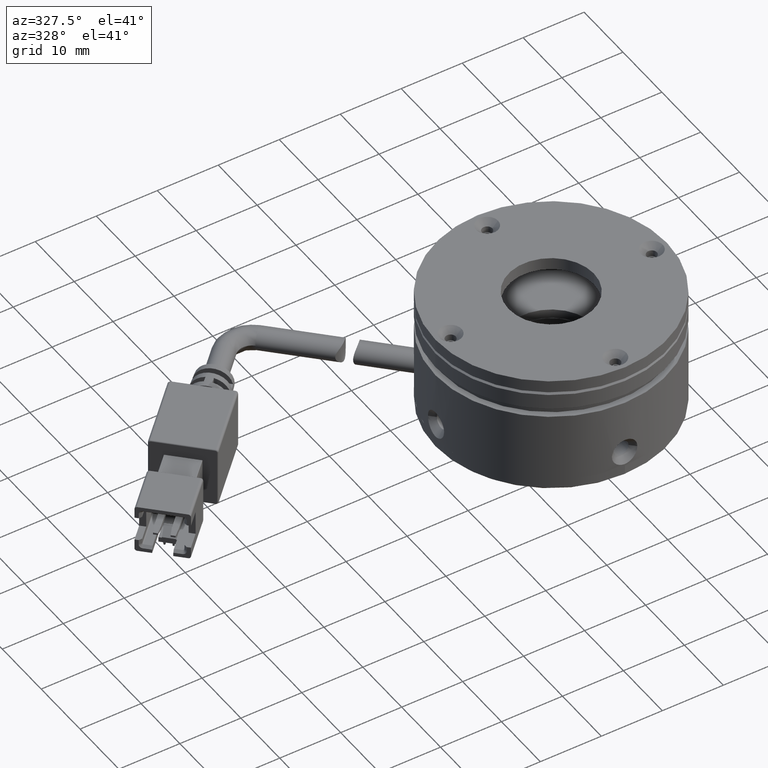
[diagram: clean part render]
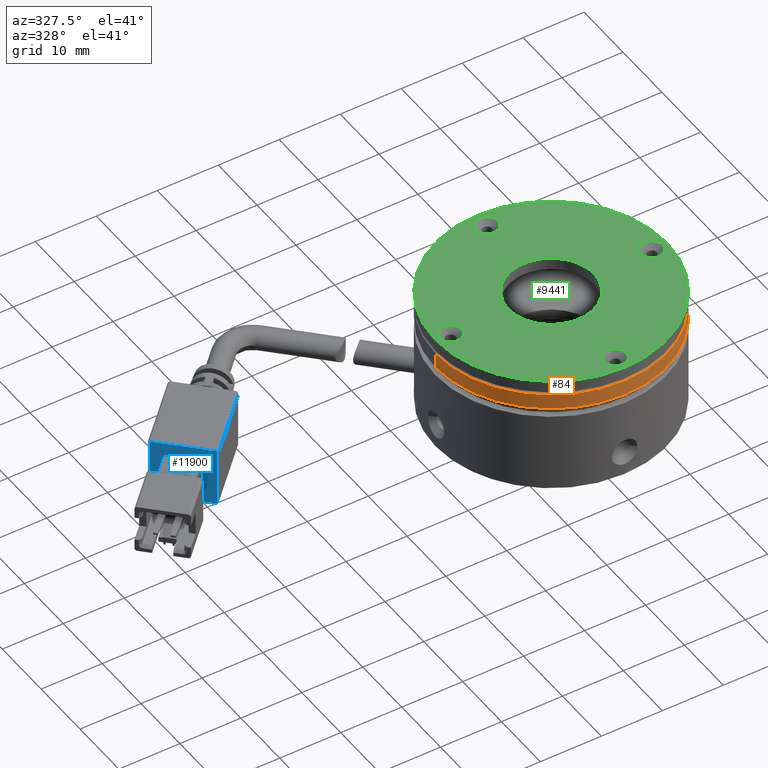
[diagram: same view with three faces highlighted in distinct colors, each labeled with its STEP entity id]
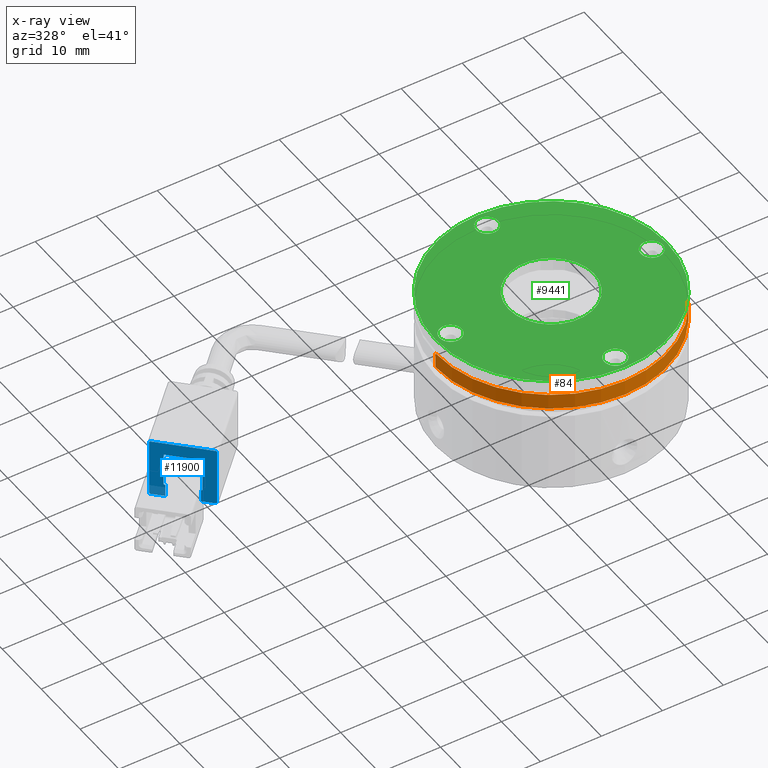
[diagram: x-ray of the same camera — body ghosted, the three highlighted faces saturated]
A machine part, auxiliary view with three faces highlighted in distinct colors.
The next image is the same camera in x-ray (body ghosted, the three faces saturated) — at least one of them is partly hidden behind the body in this view.
Their STEP definitions:

[orange] entity #84 — the highlighted cylindrical surface (partial cylindrical patch) has radius 19 mm, axis along (-0, 0, 1).
#84 = ADVANCED_FACE ( 'NONE', ( #20354 ), #17939, .T. ) ;
#930 = CARTESIAN_POINT ( 'NONE',  ( 19.00000000000007100, -1.446071792922953300E-014, 8.664916346340206100 ) ) ;
#1526 = CARTESIAN_POINT ( 'NONE',  ( 7.285838599102589800E-014, -1.346851322169655200E-014, 10.74574377933754700 ) ) ;
#1963 = EDGE_CURVE ( 'NONE', #17048, #11393, #11878, .T. ) ;
#3597 = AXIS2_PLACEMENT_3D ( 'NONE', #16486, #5033, #18387 ) ;
#4085 = CARTESIAN_POINT ( 'NONE',  ( -18.99999999999992500, -1.513644753012598100E-014, 6.164916346340190100 ) ) ;
#5033 = DIRECTION ( 'NONE',  ( 5.418055927066809900E-016, -4.212899870228777700E-017, -1.000000000000000000 ) ) ;
#5494 = VECTOR ( 'NONE', #7684, 1000.000000000000000 ) ;
#5673 = DIRECTION ( 'NONE',  ( -5.418055927066809900E-016, 4.212899870228777700E-017, 1.000000000000000000 ) ) ;
#5728 = EDGE_CURVE ( 'NONE', #11393, #18857, #20862, .T. ) ;
#5805 = VERTEX_POINT ( 'NONE', #4085 ) ;
#6276 = DIRECTION ( 'NONE',  ( -1.000000000000000000, -7.762887554996211700E-017, -5.478074134663601200E-016 ) ) ;
#6447 = EDGE_CURVE ( 'NONE', #17048, #5805, #17300, .T. ) ;
#6853 = EDGE_CURVE ( 'NONE', #18857, #21797, #11293, .T. ) ;
#7350 = AXIS2_PLACEMENT_3D ( 'NONE', #1526, #5673, #6276 ) ;
#7684 = DIRECTION ( 'NONE',  ( -5.418055927066809900E-016, 4.212899870228777700E-017, 1.000000000000000000 ) ) ;
#7690 = CARTESIAN_POINT ( 'NONE',  ( 7.285838599102589800E-014, -1.355617639792098400E-014, 8.664916346340195500 ) ) ;
#7952 = ORIENTED_EDGE ( 'NONE', *, *, #15682, .F. ) ;
#8469 = DIRECTION ( 'NONE',  ( -5.418055927066809900E-016, 4.212899870228777700E-017, 1.000000000000000000 ) ) ;
#9600 = CARTESIAN_POINT ( 'NONE',  ( -18.99999999999992500, -1.494346185714583400E-014, 10.74574377933753600 ) ) ;
#9603 = DIRECTION ( 'NONE',  ( -1.000000000000000000, -7.762887554996211700E-017, -5.478074134663601200E-016 ) ) ;
#10078 = CARTESIAN_POINT ( 'NONE',  ( 7.285838599102589800E-014, -1.366149889467670200E-014, 6.164916346340200800 ) ) ;
#10600 = ORIENTED_EDGE ( 'NONE', *, *, #5728, .T. ) ;
#11293 = CIRCLE ( 'NONE', #3597, 19.00000000000000000 ) ;
#11393 = VERTEX_POINT ( 'NONE', #930 ) ;
#11878 = LINE ( 'NONE', #24292, #16991 ) ;
#11984 = DIRECTION ( 'NONE',  ( -1.000000000000000000, -7.762887554996203100E-017, -5.478074134663601200E-016 ) ) ;
#12218 = CARTESIAN_POINT ( 'NONE',  ( 7.666016354485514600E-014, -19.00000000000001400, 8.664916346340195500 ) ) ;
#12568 = CARTESIAN_POINT ( 'NONE',  ( -18.99999999999992500, -1.508378628174812200E-014, 8.664916346340184800 ) ) ;
#13642 = ORIENTED_EDGE ( 'NONE', *, *, #1963, .T. ) ;
#15271 = AXIS2_PLACEMENT_3D ( 'NONE', #10078, #23426, #11984 ) ;
#15439 = EDGE_LOOP ( 'NONE', ( #19738, #13642, #10600, #19701, #7952 ) ) ;
#15661 = LINE ( 'NONE', #9600, #5494 ) ;
#15682 = EDGE_CURVE ( 'NONE', #5805, #21797, #15661, .T. ) ;
#16486 = CARTESIAN_POINT ( 'NONE',  ( 7.285838599102589800E-014, -1.355617639792098400E-014, 8.664916346340195500 ) ) ;
#16686 = AXIS2_PLACEMENT_3D ( 'NONE', #7690, #21067, #9603 ) ;
#16991 = VECTOR ( 'NONE', #8469, 1000.000000000000000 ) ;
#17048 = VERTEX_POINT ( 'NONE', #19003 ) ;
#17300 = CIRCLE ( 'NONE', #15271, 19.00000000000000000 ) ;
#17939 = CYLINDRICAL_SURFACE ( 'NONE', #7350, 19.00000000000000000 ) ;
#18387 = DIRECTION ( 'NONE',  ( -1.000000000000000000, -9.658072952500873500E-016, -5.478074134663601200E-016 ) ) ;
#18857 = VERTEX_POINT ( 'NONE', #12218 ) ;
#19003 = CARTESIAN_POINT ( 'NONE',  ( 19.00000000000007100, -1.446071792922953300E-014, 6.164916346340211500 ) ) ;
#19701 = ORIENTED_EDGE ( 'NONE', *, *, #6853, .T. ) ;
#19738 = ORIENTED_EDGE ( 'NONE', *, *, #6447, .F. ) ;
#20354 = FACE_OUTER_BOUND ( 'NONE', #15439, .T. ) ;
#20862 = CIRCLE ( 'NONE', #16686, 19.00000000000000000 ) ;
#21067 = DIRECTION ( 'NONE',  ( 5.418055927066809900E-016, -4.212899870228777700E-017, -1.000000000000000000 ) ) ;
#21797 = VERTEX_POINT ( 'NONE', #12568 ) ;
#23426 = DIRECTION ( 'NONE',  ( 5.418055927066809900E-016, -4.212899870228777700E-017, -1.000000000000000000 ) ) ;
#24292 = CARTESIAN_POINT ( 'NONE',  ( 19.00000000000007100, -1.432039350462724400E-014, 10.74574377933755700 ) ) ;

[blue] entity #11900 — the highlighted planar face has unit normal (-0.7071, -0.7071, -0).
#11 = VERTEX_POINT ( 'NONE', #11542 ) ;
#97 = ORIENTED_EDGE ( 'NONE', *, *, #16356, .F. ) ;
#148 = ORIENTED_EDGE ( 'NONE', *, *, #23994, .T. ) ;
#172 = EDGE_CURVE ( 'NONE', #24211, #16237, #23294, .T. ) ;
#343 = CARTESIAN_POINT ( 'NONE',  ( -51.61879502661791700, 9.192388155424808400, -10.13508365365980300 ) ) ;
#362 = LINE ( 'NONE', #13523, #4878 ) ;
#384 = LINE ( 'NONE', #10986, #24594 ) ;
#410 = EDGE_CURVE ( 'NONE', #19726, #6949, #17009, .T. ) ;
#507 = VERTEX_POINT ( 'NONE', #2900 ) ;
#733 = DIRECTION ( 'NONE',  ( 2.712282868059973800E-016, -3.327687214322150600E-017, -1.000000000000000000 ) ) ;
#784 = DIRECTION ( 'NONE',  ( 0.7071067811865522400, -0.7071067811865428000, 2.153176627992813000E-016 ) ) ;
#1229 = EDGE_CURVE ( 'NONE', #5781, #15295, #1829, .T. ) ;
#1829 = B_SPLINE_CURVE_WITH_KNOTS ( 'NONE', 3,
 ( #15225, #9500, #22274, #7192, #7103, #7022 ),
 .UNSPECIFIED., .F., .F.,
 ( 4, 2, 4 ),
 ( 0.0000000000000000000, 0.5000000000000000000, 1.000000000000000000 ),
 .UNSPECIFIED. ) ;
#2078 = VERTEX_POINT ( 'NONE', #23261 ) ;
#2197 = LINE ( 'NONE', #22109, #16895 ) ;
#2817 = CARTESIAN_POINT ( 'NONE',  ( -50.13387078612615300, 7.707463914933062400, -0.3350836536598024200 ) ) ;
#2900 = CARTESIAN_POINT ( 'NONE',  ( -51.44201833132127900, 9.015611460128173600, -7.785083653659811800 ) ) ;
#3090 = DIRECTION ( 'NONE',  ( 0.7071067811865388000, -0.7071067811865561200, 0.0000000000000000000 ) ) ;
#3152 = VECTOR ( 'NONE', #733, 1000.000000000000000 ) ;
#3254 = CARTESIAN_POINT ( 'NONE',  ( -55.26039494972866400, 12.83398807853550300, -7.785083653659813600 ) ) ;
#3601 = AXIS2_PLACEMENT_3D ( 'NONE', #5210, #18574, #7126 ) ;
#3660 = CARTESIAN_POINT ( 'NONE',  ( -56.71189850064591600, 14.28549162945274300, -9.915557439072241400 ) ) ;
#3685 = VECTOR ( 'NONE', #4947, 1000.000000000000000 ) ;
#3965 = VERTEX_POINT ( 'NONE', #11986 ) ;
#4198 = CARTESIAN_POINT ( 'NONE',  ( -49.99244942988884300, 7.566042558695751400, -9.735083653659801300 ) ) ;
#4210 = VERTEX_POINT ( 'NONE', #8616 ) ;
#4229 = CARTESIAN_POINT ( 'NONE',  ( -51.51272900943994400, 9.086322138246826400, -2.385083653659812300 ) ) ;
#4728 = VECTOR ( 'NONE', #16337, 1000.000000000000000 ) ;
#4878 = VECTOR ( 'NONE', #15468, 1000.000000000000000 ) ;
#4879 = CARTESIAN_POINT ( 'NONE',  ( -55.15432893255067600, 12.72792206135752300, -10.13508365365980700 ) ) ;
#4894 = ORIENTED_EDGE ( 'NONE', *, *, #410, .F. ) ;
#4947 = DIRECTION ( 'NONE',  ( -0.7071067811865522400, 0.7071067811865428000, -4.518708640688459700E-016 ) ) ;
#5210 = CARTESIAN_POINT ( 'NONE',  ( -51.51272900943994400, 9.086322138246826400, -7.785083653659811800 ) ) ;
#5247 = CARTESIAN_POINT ( 'NONE',  ( -51.51272900943994400, 9.086322138246826400, -2.485083653659812000 ) ) ;
#5436 = EDGE_CURVE ( 'NONE', #23821, #15679, #15521, .T. ) ;
#5487 = EDGE_CURVE ( 'NONE', #21606, #11, #10716, .T. ) ;
#5570 = CARTESIAN_POINT ( 'NONE',  ( -56.63925317304242700, 14.21284630184925400, -9.935083653659804200 ) ) ;
#5726 = LINE ( 'NONE', #343, #10813 ) ;
#5781 = VERTEX_POINT ( 'NONE', #15485 ) ;
#5977 = ORIENTED_EDGE ( 'NONE', *, *, #16600, .T. ) ;
#6682 = CARTESIAN_POINT ( 'NONE',  ( -49.99244942988885000, 7.566042558695761100, -0.4179263661344238500 ) ) ;
#6841 = VERTEX_POINT ( 'NONE', #16313 ) ;
#6949 = VERTEX_POINT ( 'NONE', #7196 ) ;
#7022 = CARTESIAN_POINT ( 'NONE',  ( -49.99244942988884300, 7.566042558695751400, -9.735083653659801300 ) ) ;
#7049 = CARTESIAN_POINT ( 'NONE',  ( -56.92209588551705200, 14.49568901432387600, -0.3350836536598041400 ) ) ;
#7103 = CARTESIAN_POINT ( 'NONE',  ( -49.99244942988885000, 7.566042558695751400, -9.790679209120611400 ) ) ;
#7126 = DIRECTION ( 'NONE',  ( 0.7071067811865388000, -0.7071067811865561200, 0.0000000000000000000 ) ) ;
#7128 = DIRECTION ( 'NONE',  ( -2.712282868059973800E-016, 3.327687214322150600E-017, 1.000000000000000000 ) ) ;
#7192 = CARTESIAN_POINT ( 'NONE',  ( -50.00625654863461000, 7.579849677441521800, -9.837819661199715100 ) ) ;
#7196 = CARTESIAN_POINT ( 'NONE',  ( -55.26039494972866400, 12.83398807853550500, -7.885083653659813200 ) ) ;
#7213 = EDGE_LOOP ( 'NONE', ( #15938, #21357, #18706, #23922, #22847, #9399, #97, #21251, #7640, #7756, #5977, #9237, #13481, #8447, #4894, #21388, #21546, #148, #11863, #17441 ) ) ;
#7640 = ORIENTED_EDGE ( 'NONE', *, *, #19459, .F. ) ;
#7756 = ORIENTED_EDGE ( 'NONE', *, *, #18845, .T. ) ;
#7885 =( BOUNDED_CURVE ( )  B_SPLINE_CURVE ( 3, ( #2817, #14274, #6682, #20027 ),
 .UNSPECIFIED., .F., .F. ) 
 B_SPLINE_CURVE_WITH_KNOTS ( ( 4, 4 ),
 ( 0.0000000000000000000, 1.000000000000000000 ),
 .UNSPECIFIED. ) 
 CURVE ( )  GEOMETRIC_REPRESENTATION_ITEM ( )  RATIONAL_B_SPLINE_CURVE ( ( 1.000000000000000000, 0.8047378541243658300, 0.8047378541243658300, 1.000000000000000000 ) ) 
 REPRESENTATION_ITEM ( '' )  );
#7974 = DIRECTION ( 'NONE',  ( -0.7071067811865428000, -0.7071067811865522400, -1.682570589009794600E-016 ) ) ;
#8415 = CARTESIAN_POINT ( 'NONE',  ( -56.78067452927974300, 14.35426765808656300, -10.13508365365980700 ) ) ;
#8447 = ORIENTED_EDGE ( 'NONE', *, *, #17763, .T. ) ;
#8590 = CARTESIAN_POINT ( 'NONE',  ( -49.99244942988884300, 7.566042558695751400, -0.5350836536598020400 ) ) ;
#8610 = CARTESIAN_POINT ( 'NONE',  ( -56.78067452927975000, 14.35426765808656300, -0.5350836536598047000 ) ) ;
#8616 = CARTESIAN_POINT ( 'NONE',  ( -55.33110562784732200, 12.90469875665415800, -2.485083653659813800 ) ) ;
#8813 = EDGE_CURVE ( 'NONE', #19726, #4210, #362, .T. ) ;
#9010 = VERTEX_POINT ( 'NONE', #8590 ) ;
#9237 = ORIENTED_EDGE ( 'NONE', *, *, #18847, .T. ) ;
#9317 = CARTESIAN_POINT ( 'NONE',  ( -56.78067452927974300, 14.35426765808656300, -9.735083653659806700 ) ) ;
#9399 = ORIENTED_EDGE ( 'NONE', *, *, #15516, .T. ) ;
#9500 = CARTESIAN_POINT ( 'NONE',  ( -50.09508038502706700, 7.668673513833984300, -9.935083653659804200 ) ) ;
#9542 = CARTESIAN_POINT ( 'NONE',  ( -51.44201833132127900, 9.015611460128173600, -7.885083653659811500 ) ) ;
#9789 = CARTESIAN_POINT ( 'NONE',  ( -51.61879502661792400, 9.192388155424808400, -7.885083653659809700 ) ) ;
#10328 = DIRECTION ( 'NONE',  ( 2.712282868059973800E-016, -3.327687214322150600E-017, -1.000000000000000000 ) ) ;
#10457 = CARTESIAN_POINT ( 'NONE',  ( -56.92209588551705200, 14.49568901432387200, -10.13508365365980700 ) ) ;
#10619 = LINE ( 'NONE', #23629, #3152 ) ;
#10710 = DIRECTION ( 'NONE',  ( 0.7071067811865522400, -0.7071067811865428000, 2.153176627992813000E-016 ) ) ;
#10716 = LINE ( 'NONE', #7049, #15807 ) ;
#10813 = VECTOR ( 'NONE', #17648, 1000.000000000000000 ) ;
#10986 = CARTESIAN_POINT ( 'NONE',  ( -49.99244942988884300, 7.566042558695751400, -10.13508365365980300 ) ) ;
#11056 = LINE ( 'NONE', #8415, #16131 ) ;
#11388 = CARTESIAN_POINT ( 'NONE',  ( -56.92209588551705200, 14.49568901432387200, -9.935083653659804200 ) ) ;
#11542 = CARTESIAN_POINT ( 'NONE',  ( -50.13387078612615300, 7.707463914933062400, -0.3350836536598024200 ) ) ;
#11633 = CARTESIAN_POINT ( 'NONE',  ( -56.78067452927975000, 14.35426765808656300, -0.5350836536598047000 ) ) ;
#11658 = EDGE_CURVE ( 'NONE', #13784, #5781, #19577, .T. ) ;
#11853 = EDGE_CURVE ( 'NONE', #24211, #507, #10619, .T. ) ;
#11863 = ORIENTED_EDGE ( 'NONE', *, *, #172, .F. ) ;
#11900 = ADVANCED_FACE ( 'NONE', ( #15996 ), #16141, .T. ) ;
#11986 = CARTESIAN_POINT ( 'NONE',  ( -51.51272900943994400, 9.086322138246826400, -7.885083653659811500 ) ) ;
#12339 = DIRECTION ( 'NONE',  ( -0.7071067811865522400, 0.7071067811865428000, -2.153176627992813000E-016 ) ) ;
#12388 = CIRCLE ( 'NONE', #21068, 0.09999999999999892300 ) ;
#13108 = AXIS2_PLACEMENT_3D ( 'NONE', #10457, #23771, #12339 ) ;
#13379 = EDGE_CURVE ( 'NONE', #20090, #13784, #5726, .T. ) ;
#13481 = ORIENTED_EDGE ( 'NONE', *, *, #5436, .T. ) ;
#13523 = CARTESIAN_POINT ( 'NONE',  ( -55.33110562784732200, 12.90469875665415800, -10.13508365365980700 ) ) ;
#13784 = VERTEX_POINT ( 'NONE', #19124 ) ;
#13829 = DIRECTION ( 'NONE',  ( -0.7071067811865428000, -0.7071067811865522400, -1.682570589009794600E-016 ) ) ;
#13846 = DIRECTION ( 'NONE',  ( 0.7071067811865388000, -0.7071067811865561200, 0.0000000000000000000 ) ) ;
#14274 = CARTESIAN_POINT ( 'NONE',  ( -50.05102807365154400, 7.624621202458451200, -0.3350836536598073000 ) ) ;
#14562 = CARTESIAN_POINT ( 'NONE',  ( -51.44201833132127900, 9.015611460128177200, -7.885083653659811500 ) ) ;
#15107 = CARTESIAN_POINT ( 'NONE',  ( -56.76660784543896200, 14.34020097424576600, -9.837452580721992100 ) ) ;
#15168 = EDGE_CURVE ( 'NONE', #3965, #20090, #18397, .T. ) ;
#15225 = CARTESIAN_POINT ( 'NONE',  ( -50.13387078612615300, 7.707463914933061500, -9.935083653659802400 ) ) ;
#15295 = VERTEX_POINT ( 'NONE', #4198 ) ;
#15334 = DIRECTION ( 'NONE',  ( -0.7071067811865428000, -0.7071067811865522400, -1.682570589009794600E-016 ) ) ;
#15468 = DIRECTION ( 'NONE',  ( -2.712282868059973800E-016, 3.327687214322150600E-017, 1.000000000000000000 ) ) ;
#15485 = CARTESIAN_POINT ( 'NONE',  ( -50.13387078612615300, 7.707463914933061500, -9.935083653659802400 ) ) ;
#15516 = EDGE_CURVE ( 'NONE', #15295, #9010, #384, .T. ) ;
#15521 = LINE ( 'NONE', #4879, #4728 ) ;
#15679 = VERTEX_POINT ( 'NONE', #21064 ) ;
#15807 = VECTOR ( 'NONE', #18495, 1000.000000000000000 ) ;
#15938 = ORIENTED_EDGE ( 'NONE', *, *, #20911, .F. ) ;
#15996 = FACE_OUTER_BOUND ( 'NONE', #7213, .T. ) ;
#16131 = VECTOR ( 'NONE', #10328, 1000.000000000000000 ) ;
#16141 = PLANE ( 'NONE',  #13108 ) ;
#16237 = VERTEX_POINT ( 'NONE', #4229 ) ;
#16246 = CARTESIAN_POINT ( 'NONE',  ( -56.72209588551704900, 14.29568901432387700, -0.3350836536598023100 ) ) ;
#16313 = CARTESIAN_POINT ( 'NONE',  ( -55.26039494972866400, 12.83398807853550300, -2.385083653659813200 ) ) ;
#16337 = DIRECTION ( 'NONE',  ( -2.712282868059973800E-016, 3.327687214322150600E-017, 1.000000000000000000 ) ) ;
#16356 = EDGE_CURVE ( 'NONE', #11, #9010, #7885, .T. ) ;
#16600 = EDGE_CURVE ( 'NONE', #2078, #23988, #22760, .T. ) ;
#16895 = VECTOR ( 'NONE', #10710, 1000.000000000000000 ) ;
#17009 = CIRCLE ( 'NONE', #23038, 0.09999999999999892300 ) ;
#17012 = CARTESIAN_POINT ( 'NONE',  ( -56.67856516731258400, 14.25215829611940800, -9.935083653659805900 ) ) ;
#17167 = EDGE_CURVE ( 'NONE', #6841, #4210, #12388, .T. ) ;
#17441 = ORIENTED_EDGE ( 'NONE', *, *, #11853, .T. ) ;
#17648 = DIRECTION ( 'NONE',  ( 2.712282868059973800E-016, -3.327687214322150600E-017, -1.000000000000000000 ) ) ;
#17677 = CARTESIAN_POINT ( 'NONE',  ( -56.63925317304243400, 14.21284630184925700, -0.3350836536598050300 ) ) ;
#17763 = EDGE_CURVE ( 'NONE', #15679, #6949, #18330, .T. ) ;
#18145 = CARTESIAN_POINT ( 'NONE',  ( -56.78067452927974300, 14.35426765808656800, -0.4179263661344221900 ) ) ;
#18318 = CARTESIAN_POINT ( 'NONE',  ( -56.63925317304242700, 14.21284630184925400, -9.935083653659804200 ) ) ;
#18330 = LINE ( 'NONE', #14562, #3685 ) ;
#18397 = LINE ( 'NONE', #9542, #23453 ) ;
#18452 = CARTESIAN_POINT ( 'NONE',  ( -55.33110562784732200, 12.90469875665415800, -7.785083653659813600 ) ) ;
#18495 = DIRECTION ( 'NONE',  ( 0.7071067811865522400, -0.7071067811865428000, 3.020538365981216500E-016 ) ) ;
#18574 = DIRECTION ( 'NONE',  ( -0.7071067811865428000, -0.7071067811865522400, -1.682570589009794600E-016 ) ) ;
#18706 = ORIENTED_EDGE ( 'NONE', *, *, #13379, .T. ) ;
#18845 = EDGE_CURVE ( 'NONE', #23231, #2078, #11056, .T. ) ;
#18847 = EDGE_CURVE ( 'NONE', #23988, #23821, #21192, .T. ) ;
#19124 = CARTESIAN_POINT ( 'NONE',  ( -51.61879502661791700, 9.192388155424808400, -9.935083653659804200 ) ) ;
#19421 = CARTESIAN_POINT ( 'NONE',  ( -55.26039494972866400, 12.83398807853550300, -2.485083653659813800 ) ) ;
#19459 = EDGE_CURVE ( 'NONE', #23231, #21606, #20759, .T. ) ;
#19577 = LINE ( 'NONE', #11388, #24641 ) ;
#19628 = CARTESIAN_POINT ( 'NONE',  ( -55.15432893255067600, 12.72792206135752300, -9.935083653659805900 ) ) ;
#19726 = VERTEX_POINT ( 'NONE', #18452 ) ;
#20027 = CARTESIAN_POINT ( 'NONE',  ( -49.99244942988884300, 7.566042558695751400, -0.5350836536598020400 ) ) ;
#20090 = VERTEX_POINT ( 'NONE', #9789 ) ;
#20615 = VECTOR ( 'NONE', #784, 1000.000000000000000 ) ;
#20759 =( BOUNDED_CURVE ( )  B_SPLINE_CURVE ( 3, ( #8610, #18145, #16246, #21935 ),
 .UNSPECIFIED., .F., .F. ) 
 B_SPLINE_CURVE_WITH_KNOTS ( ( 4, 4 ),
 ( 0.0000000000000000000, 1.000000000000000000 ),
 .UNSPECIFIED. ) 
 CURVE ( )  GEOMETRIC_REPRESENTATION_ITEM ( )  RATIONAL_B_SPLINE_CURVE ( ( 1.000000000000000000, 0.8047378541243634900, 0.8047378541243634900, 1.000000000000000000 ) ) 
 REPRESENTATION_ITEM ( '' )  );
#20784 = CARTESIAN_POINT ( 'NONE',  ( -56.78067452927974300, 14.35426765808656300, -9.789941564984042400 ) ) ;
#20911 = EDGE_CURVE ( 'NONE', #3965, #507, #24580, .T. ) ;
#20978 = CARTESIAN_POINT ( 'NONE',  ( -51.44201833132127900, 9.015611460128173600, -2.485083653659812000 ) ) ;
#21018 = DIRECTION ( 'NONE',  ( -0.7071067811865522400, 0.7071067811865428000, -4.518708640688459700E-016 ) ) ;
#21064 = CARTESIAN_POINT ( 'NONE',  ( -55.15432893255067600, 12.72792206135752300, -7.885083653659807900 ) ) ;
#21068 = AXIS2_PLACEMENT_3D ( 'NONE', #19421, #7974, #21347 ) ;
#21192 = LINE ( 'NONE', #23670, #20615 ) ;
#21251 = ORIENTED_EDGE ( 'NONE', *, *, #5487, .F. ) ;
#21347 = DIRECTION ( 'NONE',  ( 0.7071067811865388000, -0.7071067811865561200, 0.0000000000000000000 ) ) ;
#21357 = ORIENTED_EDGE ( 'NONE', *, *, #15168, .T. ) ;
#21388 = ORIENTED_EDGE ( 'NONE', *, *, #8813, .T. ) ;
#21546 = ORIENTED_EDGE ( 'NONE', *, *, #17167, .F. ) ;
#21606 = VERTEX_POINT ( 'NONE', #17677 ) ;
#21935 = CARTESIAN_POINT ( 'NONE',  ( -56.63925317304243400, 14.21284630184925700, -0.3350836536598050300 ) ) ;
#22109 = CARTESIAN_POINT ( 'NONE',  ( -56.92209588551705200, 14.49568901432387200, -2.385083653659813700 ) ) ;
#22274 = CARTESIAN_POINT ( 'NONE',  ( -50.06148502361769200, 7.635078152424601900, -9.915190358594514900 ) ) ;
#22693 = AXIS2_PLACEMENT_3D ( 'NONE', #5247, #13829, #13846 ) ;
#22707 = DIRECTION ( 'NONE',  ( 0.7071067811865522400, -0.7071067811865428000, 2.153176627992813000E-016 ) ) ;
#22760 = B_SPLINE_CURVE_WITH_KNOTS ( 'NONE', 3,
 ( #9317, #20784, #15107, #3660, #17012, #5570 ),
 .UNSPECIFIED., .F., .F.,
 ( 4, 2, 4 ),
 ( 0.0000000000000000000, 0.5000000000000000000, 1.000000000000000000 ),
 .UNSPECIFIED. ) ;
#22847 = ORIENTED_EDGE ( 'NONE', *, *, #1229, .T. ) ;
#23038 = AXIS2_PLACEMENT_3D ( 'NONE', #3254, #15334, #3090 ) ;
#23231 = VERTEX_POINT ( 'NONE', #11633 ) ;
#23261 = CARTESIAN_POINT ( 'NONE',  ( -56.78067452927974300, 14.35426765808656300, -9.735083653659806700 ) ) ;
#23294 = CIRCLE ( 'NONE', #22693, 0.09999999999999892300 ) ;
#23453 = VECTOR ( 'NONE', #21018, 1000.000000000000000 ) ;
#23629 = CARTESIAN_POINT ( 'NONE',  ( -51.44201833132127900, 9.015611460128173600, -10.13508365365980300 ) ) ;
#23670 = CARTESIAN_POINT ( 'NONE',  ( -56.92209588551705200, 14.49568901432387200, -9.935083653659804200 ) ) ;
#23771 = DIRECTION ( 'NONE',  ( -0.7071067811865428000, -0.7071067811865522400, -1.682570589009794300E-016 ) ) ;
#23821 = VERTEX_POINT ( 'NONE', #19628 ) ;
#23922 = ORIENTED_EDGE ( 'NONE', *, *, #11658, .T. ) ;
#23988 = VERTEX_POINT ( 'NONE', #18318 ) ;
#23994 = EDGE_CURVE ( 'NONE', #6841, #16237, #2197, .T. ) ;
#24211 = VERTEX_POINT ( 'NONE', #20978 ) ;
#24580 = CIRCLE ( 'NONE', #3601, 0.09999999999999892300 ) ;
#24594 = VECTOR ( 'NONE', #7128, 1000.000000000000000 ) ;
#24641 = VECTOR ( 'NONE', #22707, 1000.000000000000000 ) ;

[green] entity #9441 — the highlighted planar face has unit normal (0, 0, 1).
#219 = CIRCLE ( 'NONE', #22402, 1.799999999953734400 ) ;
#585 = EDGE_LOOP ( 'NONE', ( #7327, #20510 ) ) ;
#624 = CARTESIAN_POINT ( 'NONE',  ( 1.628081146963360700E-014, 16.49999999999998900, 11.16491634629290900 ) ) ;
#887 = ORIENTED_EDGE ( 'NONE', *, *, #7243, .T. ) ;
#1366 = CIRCLE ( 'NONE', #13631, 1.799999999946060100 ) ;
#1618 = ORIENTED_EDGE ( 'NONE', *, *, #20475, .T. ) ;
#1796 = VERTEX_POINT ( 'NONE', #6715 ) ;
#1893 = ORIENTED_EDGE ( 'NONE', *, *, #20687, .T. ) ;
#2047 = CIRCLE ( 'NONE', #15064, 19.00000000000000000 ) ;
#2261 = VERTEX_POINT ( 'NONE', #3072 ) ;
#2535 = DIRECTION ( 'NONE',  ( 1.000000000000000000, 0.0000000000000000000, 0.0000000000000000000 ) ) ;
#3015 = FACE_BOUND ( 'NONE', #9068, .T. ) ;
#3072 = CARTESIAN_POINT ( 'NONE',  ( 1.799999999946076300, -16.50000000000001800, 11.16491634629290900 ) ) ;
#3288 = DIRECTION ( 'NONE',  ( -0.0000000000000000000, 0.0000000000000000000, -1.000000000000000000 ) ) ;
#3365 = VERTEX_POINT ( 'NONE', #17840 ) ;
#3626 = FACE_BOUND ( 'NONE', #19892, .T. ) ;
#3894 = CARTESIAN_POINT ( 'NONE',  ( 9.341917565726379000E-015, -1.270134518462339200E-014, 11.16491634634020300 ) ) ;
#4281 = ORIENTED_EDGE ( 'NONE', *, *, #18629, .F. ) ;
#4534 = DIRECTION ( 'NONE',  ( 0.0000000000000000000, 0.0000000000000000000, 1.000000000000000000 ) ) ;
#5527 = AXIS2_PLACEMENT_3D ( 'NONE', #14723, #3288, #16635 ) ;
#5567 = EDGE_CURVE ( 'NONE', #6548, #19692, #13382, .T. ) ;
#5836 = DIRECTION ( 'NONE',  ( -1.000000000000000000, 0.0000000000000000000, 0.0000000000000000000 ) ) ;
#5896 = EDGE_CURVE ( 'NONE', #17521, #2261, #8087, .T. ) ;
#6000 = DIRECTION ( 'NONE',  ( -0.0000000000000000000, 0.0000000000000000000, -1.000000000000000000 ) ) ;
#6319 = AXIS2_PLACEMENT_3D ( 'NONE', #11244, #24564, #13148 ) ;
#6548 = VERTEX_POINT ( 'NONE', #15410 ) ;
#6711 = ORIENTED_EDGE ( 'NONE', *, *, #14452, .T. ) ;
#6715 = CARTESIAN_POINT ( 'NONE',  ( 14.70000000004633900, -1.225815860688049400E-014, 11.16491634629290900 ) ) ;
#6801 = DIRECTION ( 'NONE',  ( -0.0000000000000000000, -0.0000000000000000000, -1.000000000000000000 ) ) ;
#7001 = ORIENTED_EDGE ( 'NONE', *, *, #5567, .F. ) ;
#7243 = EDGE_CURVE ( 'NONE', #24705, #17136, #24138, .T. ) ;
#7327 = ORIENTED_EDGE ( 'NONE', *, *, #21401, .T. ) ;
#7340 = AXIS2_PLACEMENT_3D ( 'NONE', #16012, #4534, #17918 ) ;
#8078 = FACE_BOUND ( 'NONE', #8625, .T. ) ;
#8087 = CIRCLE ( 'NONE', #21315, 1.799999999945834500 ) ;
#8315 = PLANE ( 'NONE',  #7340 ) ;
#8372 = DIRECTION ( 'NONE',  ( -0.0000000000000000000, 0.0000000000000000000, -1.000000000000000000 ) ) ;
#8567 = DIRECTION ( 'NONE',  ( -0.0000000000000000000, -0.0000000000000000000, -1.000000000000000000 ) ) ;
#8625 = EDGE_LOOP ( 'NONE', ( #6711, #1893 ) ) ;
#8631 = CIRCLE ( 'NONE', #15390, 7.000000000000000000 ) ;
#8840 = AXIS2_PLACEMENT_3D ( 'NONE', #9856, #23234, #11776 ) ;
#9068 = EDGE_LOOP ( 'NONE', ( #1618, #10001 ) ) ;
#9132 = DIRECTION ( 'NONE',  ( -0.0000000000000000000, -0.0000000000000000000, -1.000000000000000000 ) ) ;
#9441 = ADVANCED_FACE ( 'NONE', ( #3626, #23322, #8078, #3015, #22705, #17645 ), #8315, .T. ) ;
#9856 = CARTESIAN_POINT ( 'NONE',  ( 1.628081146963360700E-014, 16.49999999999998900, 11.16491634629290900 ) ) ;
#9869 = CARTESIAN_POINT ( 'NONE',  ( -16.49999999999994300, -1.504034792387010000E-014, 11.16491634634975200 ) ) ;
#9969 = CIRCLE ( 'NONE', #18642, 1.799999999953734400 ) ;
#10001 = ORIENTED_EDGE ( 'NONE', *, *, #5896, .T. ) ;
#10226 = CARTESIAN_POINT ( 'NONE',  ( -1.799999999946043900, 16.49999999999998900, 11.16491634629290900 ) ) ;
#10306 = CARTESIAN_POINT ( 'NONE',  ( 16.50000000000007500, -1.247859503072135200E-014, 11.16491634629290900 ) ) ;
#11232 = AXIS2_PLACEMENT_3D ( 'NONE', #9869, #23241, #11786 ) ;
#11244 = CARTESIAN_POINT ( 'NONE',  ( 2.417948633466185500E-013, -16.50000000000001800, 11.16491634629290900 ) ) ;
#11252 = VERTEX_POINT ( 'NONE', #19645 ) ;
#11775 = CIRCLE ( 'NONE', #6319, 1.799999999945834500 ) ;
#11776 = DIRECTION ( 'NONE',  ( 1.000000000000000000, 0.0000000000000000000, 0.0000000000000000000 ) ) ;
#11786 = DIRECTION ( 'NONE',  ( 1.000000000000000000, 0.0000000000000000000, 0.0000000000000000000 ) ) ;
#12200 = DIRECTION ( 'NONE',  ( 1.000000000000000000, 0.0000000000000000000, 0.0000000000000000000 ) ) ;
#12584 = CIRCLE ( 'NONE', #8840, 1.799999999946060100 ) ;
#12876 = EDGE_LOOP ( 'NONE', ( #7001, #4281 ) ) ;
#13148 = DIRECTION ( 'NONE',  ( 1.000000000000000000, 0.0000000000000000000, 0.0000000000000000000 ) ) ;
#13312 = EDGE_CURVE ( 'NONE', #19535, #15358, #12584, .T. ) ;
#13382 = CIRCLE ( 'NONE', #15885, 19.00000000000000000 ) ;
#13631 = AXIS2_PLACEMENT_3D ( 'NONE', #624, #13990, #2535 ) ;
#13932 = CARTESIAN_POINT ( 'NONE',  ( 1.799999999946076300, 16.49999999999998900, 11.16491634629290900 ) ) ;
#13990 = DIRECTION ( 'NONE',  ( -0.0000000000000000000, 0.0000000000000000000, -1.000000000000000000 ) ) ;
#14156 = ORIENTED_EDGE ( 'NONE', *, *, #18863, .T. ) ;
#14452 = EDGE_CURVE ( 'NONE', #11252, #1796, #219, .T. ) ;
#14723 = CARTESIAN_POINT ( 'NONE',  ( -16.49999999999994300, -1.504034792387010000E-014, 11.16491634634975200 ) ) ;
#15064 = AXIS2_PLACEMENT_3D ( 'NONE', #3894, #17261, #5836 ) ;
#15358 = VERTEX_POINT ( 'NONE', #10226 ) ;
#15359 = CARTESIAN_POINT ( 'NONE',  ( 7.000000000000009800, -1.184409242522024400E-014, 11.16491634634020300 ) ) ;
#15390 = AXIS2_PLACEMENT_3D ( 'NONE', #20010, #8567, #21882 ) ;
#15410 = CARTESIAN_POINT ( 'NONE',  ( -18.99999999999998900, -1.270134518462339200E-014, 11.16491634634020300 ) ) ;
#15670 = CARTESIAN_POINT ( 'NONE',  ( -18.29999999993823000, -1.481991150003113500E-014, 11.16491634634975200 ) ) ;
#15885 = AXIS2_PLACEMENT_3D ( 'NONE', #20592, #9132, #22471 ) ;
#16012 = CARTESIAN_POINT ( 'NONE',  ( 9.341917565726379000E-015, -1.270134518462339200E-014, 11.16491634634020300 ) ) ;
#16154 = EDGE_LOOP ( 'NONE', ( #22861, #20842 ) ) ;
#16635 = DIRECTION ( 'NONE',  ( 1.000000000000000000, 0.0000000000000000000, 0.0000000000000000000 ) ) ;
#17136 = VERTEX_POINT ( 'NONE', #15359 ) ;
#17261 = DIRECTION ( 'NONE',  ( -0.0000000000000000000, -0.0000000000000000000, -1.000000000000000000 ) ) ;
#17368 = CIRCLE ( 'NONE', #5527, 1.799999999938288500 ) ;
#17421 = CARTESIAN_POINT ( 'NONE',  ( 16.50000000000007500, -1.247859503072135200E-014, 11.16491634629290900 ) ) ;
#17521 = VERTEX_POINT ( 'NONE', #24305 ) ;
#17645 = FACE_BOUND ( 'NONE', #16154, .T. ) ;
#17840 = CARTESIAN_POINT ( 'NONE',  ( -14.70000000006165300, -1.504034792387010000E-014, 11.16491634634975200 ) ) ;
#17918 = DIRECTION ( 'NONE',  ( 1.000000000000000000, 0.0000000000000000000, -0.0000000000000000000 ) ) ;
#18246 = CARTESIAN_POINT ( 'NONE',  ( 9.341917565726379000E-015, -1.270134518462339200E-014, 11.16491634634020300 ) ) ;
#18629 = EDGE_CURVE ( 'NONE', #19692, #6548, #2047, .T. ) ;
#18642 = AXIS2_PLACEMENT_3D ( 'NONE', #10306, #23655, #12200 ) ;
#18863 = EDGE_CURVE ( 'NONE', #17136, #24705, #8631, .T. ) ;
#19297 = VERTEX_POINT ( 'NONE', #15670 ) ;
#19340 = DIRECTION ( 'NONE',  ( 1.000000000000000000, 0.0000000000000000000, 0.0000000000000000000 ) ) ;
#19535 = VERTEX_POINT ( 'NONE', #13932 ) ;
#19645 = CARTESIAN_POINT ( 'NONE',  ( 18.29999999995380800, -1.247859503072135200E-014, 11.16491634629290900 ) ) ;
#19692 = VERTEX_POINT ( 'NONE', #20209 ) ;
#19797 = CARTESIAN_POINT ( 'NONE',  ( 2.417948633466185500E-013, -16.50000000000001800, 11.16491634629290900 ) ) ;
#19892 = EDGE_LOOP ( 'NONE', ( #887, #14156 ) ) ;
#19946 = CIRCLE ( 'NONE', #11232, 1.799999999938288500 ) ;
#20010 = CARTESIAN_POINT ( 'NONE',  ( 9.341917565726379000E-015, -1.270134518462339200E-014, 11.16491634634020300 ) ) ;
#20162 = DIRECTION ( 'NONE',  ( -1.000000000000000000, 0.0000000000000000000, 0.0000000000000000000 ) ) ;
#20181 = EDGE_CURVE ( 'NONE', #15358, #19535, #1366, .T. ) ;
#20209 = CARTESIAN_POINT ( 'NONE',  ( 19.00000000000001100, -1.037451626624342100E-014, 11.16491634634020300 ) ) ;
#20475 = EDGE_CURVE ( 'NONE', #2261, #17521, #11775, .T. ) ;
#20510 = ORIENTED_EDGE ( 'NONE', *, *, #23298, .T. ) ;
#20592 = CARTESIAN_POINT ( 'NONE',  ( 9.341917565726379000E-015, -1.270134518462339200E-014, 11.16491634634020300 ) ) ;
#20687 = EDGE_CURVE ( 'NONE', #1796, #11252, #9969, .T. ) ;
#20842 = ORIENTED_EDGE ( 'NONE', *, *, #20181, .T. ) ;
#21315 = AXIS2_PLACEMENT_3D ( 'NONE', #19797, #8372, #21697 ) ;
#21358 = AXIS2_PLACEMENT_3D ( 'NONE', #18246, #6801, #20162 ) ;
#21401 = EDGE_CURVE ( 'NONE', #3365, #19297, #17368, .T. ) ;
#21697 = DIRECTION ( 'NONE',  ( 1.000000000000000000, 0.0000000000000000000, 0.0000000000000000000 ) ) ;
#21882 = DIRECTION ( 'NONE',  ( -1.000000000000000000, 0.0000000000000000000, 0.0000000000000000000 ) ) ;
#22402 = AXIS2_PLACEMENT_3D ( 'NONE', #17421, #6000, #19340 ) ;
#22471 = DIRECTION ( 'NONE',  ( -1.000000000000000000, 0.0000000000000000000, 0.0000000000000000000 ) ) ;
#22648 = CARTESIAN_POINT ( 'NONE',  ( -6.999999999999990200, -1.270134518462339200E-014, 11.16491634634020300 ) ) ;
#22705 = FACE_BOUND ( 'NONE', #585, .T. ) ;
#22861 = ORIENTED_EDGE ( 'NONE', *, *, #13312, .T. ) ;
#23234 = DIRECTION ( 'NONE',  ( -0.0000000000000000000, 0.0000000000000000000, -1.000000000000000000 ) ) ;
#23241 = DIRECTION ( 'NONE',  ( -0.0000000000000000000, 0.0000000000000000000, -1.000000000000000000 ) ) ;
#23298 = EDGE_CURVE ( 'NONE', #19297, #3365, #19946, .T. ) ;
#23322 = FACE_OUTER_BOUND ( 'NONE', #12876, .T. ) ;
#23655 = DIRECTION ( 'NONE',  ( -0.0000000000000000000, 0.0000000000000000000, -1.000000000000000000 ) ) ;
#24138 = CIRCLE ( 'NONE', #21358, 7.000000000000000000 ) ;
#24305 = CARTESIAN_POINT ( 'NONE',  ( -1.799999999945592700, -16.50000000000001800, 11.16491634629290900 ) ) ;
#24564 = DIRECTION ( 'NONE',  ( -0.0000000000000000000, 0.0000000000000000000, -1.000000000000000000 ) ) ;
#24705 = VERTEX_POINT ( 'NONE', #22648 ) ;